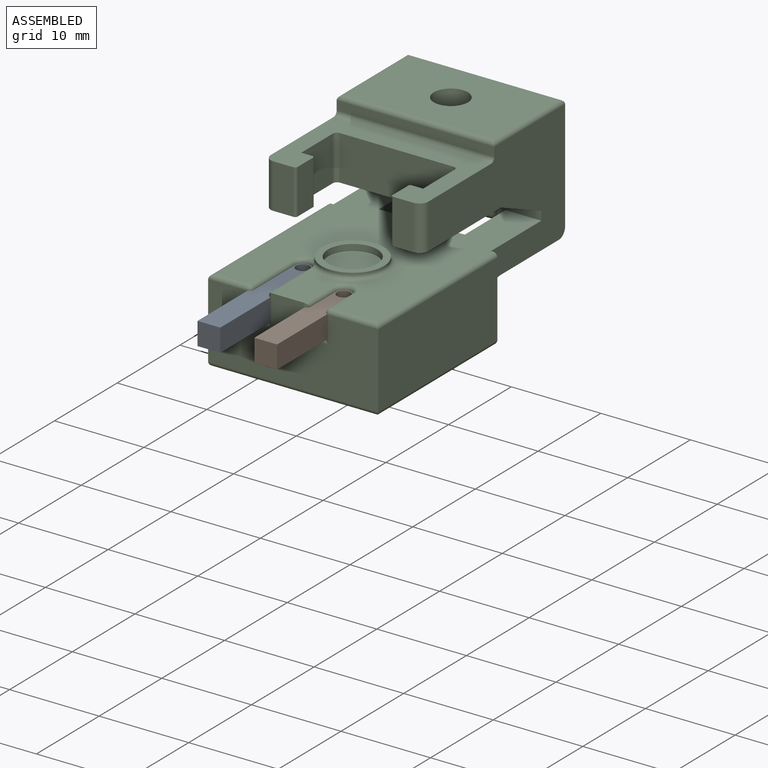
[diagram: assembled view]
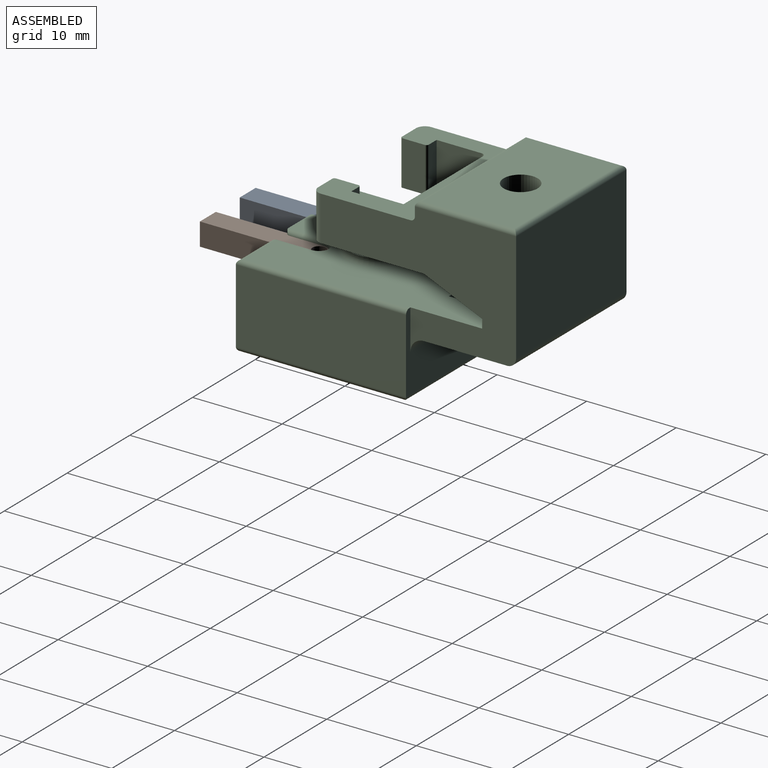
[diagram: assembled view, second angle]
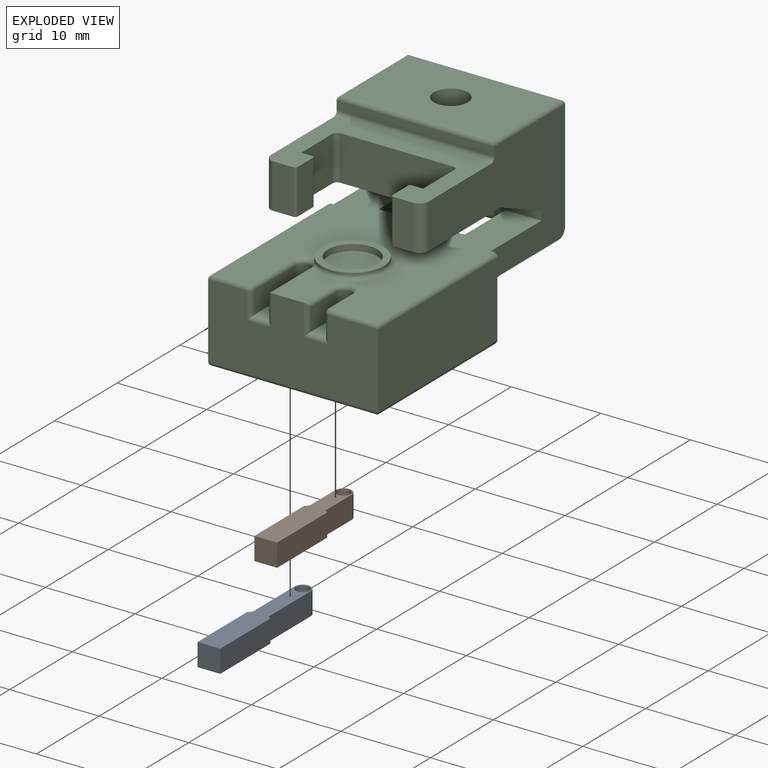
[diagram: exploded view]
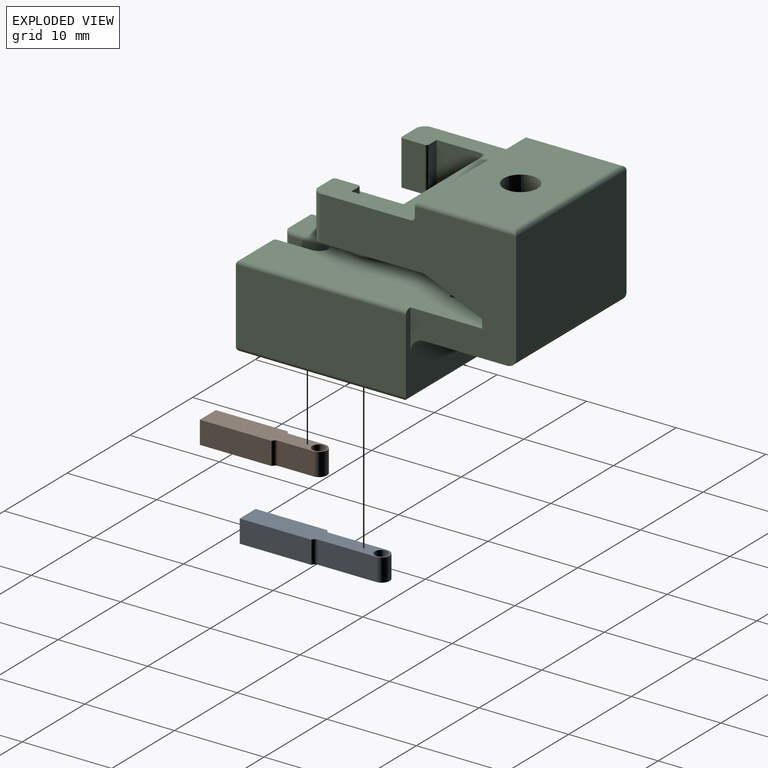
[diagram: exploded view, second angle]
ASSEMBLY  parts=3 mates=6
PART A: 11 faces, bbox 2.5x15.9x2.5 mm
  f0: plane 2.54x2.54mm, normal (0,1,0), area 6.5mm2, adj f1,f5,f7,f8
  f1: plane 8x2.54mm, normal (-1,0,0), area 20.3mm2, adj f0,f7,f8,f9
  f2: plane 6.48x2.54mm, normal (-1,0,0), area 16.5mm2, adj f3,f7,f8,f9
  f3: cylinder r=0.9mm len=2.54mm, axis (0,0,-1), area 7.2mm2, adj f2,f4,f7,f8
  f4: plane 6.48x2.54mm, normal (1,0,0), area 16.5mm2, adj f3,f7,f8,f10
  f5: plane 8x2.54mm, normal (1,0,0), area 20.3mm2, adj f0,f7,f8,f10
  f6: cylinder r=0.75mm len=2.54mm, axis (0,0,-1), area 12mm2, adj f7,f8
  f7: plane 15.86x2.54mm, normal (0,0,1), area 32.4mm2, adj f0,f1,f2,f3,f4,f5,f6,f9
  f8: plane 15.86x2.54mm, normal (0,0,-1), area 32.4mm2, adj f0,f1,f2,f3,f4,f5,f6,f9
  f9: cylinder r=0.5mm len=2.54mm, axis (0,0,-1), area 1.7mm2, adj f1,f2,f7,f8
  f10: cylinder r=0.5mm len=2.54mm, axis (0,0,1), area 1.7mm2, adj f4,f5,f7,f8
PART B: 11 faces, bbox 2.5x13.3x2.5 mm
  f0: plane 2.54x2.54mm, normal (0,1,0), area 6.5mm2, adj f1,f5,f7,f8
  f1: plane 8x2.54mm, normal (-1,0,0), area 20.3mm2, adj f0,f7,f8,f9
  f2: plane 3.94x2.54mm, normal (-1,0,0), area 10mm2, adj f3,f7,f8,f9
  f3: cylinder r=0.9mm len=2.54mm, axis (0,0,-1), area 7.2mm2, adj f2,f4,f7,f8
  f4: plane 3.94x2.54mm, normal (1,0,0), area 10mm2, adj f3,f7,f8,f10
  f5: plane 8x2.54mm, normal (1,0,0), area 20.3mm2, adj f0,f7,f8,f10
  f6: cylinder r=0.75mm len=2.54mm, axis (0,0,-1), area 12mm2, adj f7,f8
  f7: plane 13.32x2.54mm, normal (0,0,1), area 27.9mm2, adj f0,f1,f2,f3,f4,f5,f6,f9
  f8: plane 13.32x2.54mm, normal (0,0,-1), area 27.9mm2, adj f0,f1,f2,f3,f4,f5,f6,f9
  f9: cylinder r=0.5mm len=2.54mm, axis (0,0,-1), area 1.7mm2, adj f1,f2,f7,f8
  f10: cylinder r=0.5mm len=2.54mm, axis (0,0,1), area 1.7mm2, adj f4,f5,f7,f8
PART C: 128 faces, bbox 19.2x31x20.3 mm
  f0: plane 9.3x5.54mm, normal (0,0,-1), area 39mm2, adj f7,f100,f110,f113,f116,f127
  f1: plane 19x8.8mm, normal (0,1,0), area 87.9mm2, adj f7,f18,f45,f46,f47,f68,f85,f90
  f2: plane 17.6x1mm, normal (0,-1,0), area 17.6mm2, adj f7,f18,f34,f125
  f3: plane 5x5mm, normal (1,0,0), area 25mm2, adj f12,f13,f15,f123
  f4: plane 5x5mm, normal (-1,0,0), area 25mm2, adj f6,f12,f13,f124
  f5: plane 6.5x5.31mm, normal (0,-0.4,-0.92), area 27.5mm2, adj f12,f18,f97,f102,f105
  f6: plane 5x1.25mm, normal (0,1,0), area 6.2mm2, adj f4,f8,f12,f13
  f7: plane 21.8x14.8mm, normal (1,0,0), area 185.2mm2, adj f0,f1,f2,f12,f13,f14,f23,f35
  f8: cylinder r=0.25mm len=5mm, axis (0,0,1), area 2mm2, adj f6,f9,f12,f13
  f9: plane 5x2.5mm, normal (-1,0,0), area 12.5mm2, adj f8,f10,f12,f13
  f10: cylinder r=0.25mm len=5mm, axis (0,0,1), area 2mm2, adj f9,f11,f12,f13
  f11: plane 5x2.25mm, normal (0,-1,0), area 11.2mm2, adj f10,f12,f13,f14
  f12: plane 17.6x12.5mm, normal (0,0,-1), area 113mm2, adj f3,f4,f5,f6,f7,f8,f9,f10
  f13: plane 17.6x11mm, normal (0,0,1), area 86.6mm2, adj f3,f4,f6,f7,f8,f9,f10,f11
  f14: cylinder r=1mm len=5mm, axis (0,0,1), area 7.9mm2, adj f7,f11,f12,f13
  f15: plane 5x1.25mm, normal (0,1,0), area 6.2mm2, adj f3,f12,f13,f17
  f16: plane 5x2.5mm, normal (1,0,0), area 12.5mm2, adj f12,f13,f17,f20
  f17: cylinder r=0.25mm len=5mm, axis (0,0,1), area 2mm2, adj f12,f13,f15,f16
  f18: plane 21.8x14.8mm, normal (-1,0,0), area 185.2mm2, adj f1,f2,f5,f12,f13,f21,f23,f32
  f19: plane 5x2.25mm, normal (0,-1,0), area 11.2mm2, adj f12,f13,f20,f21
  f20: cylinder r=0.25mm len=5mm, axis (0,0,1), area 2mm2, adj f12,f13,f16,f19
  f21: cylinder r=1mm len=5mm, axis (0,0,1), area 7.9mm2, adj f12,f13,f18,f19
  f22: plane 16.6x10.3mm, normal (0,0,1), area 159.6mm2, adj f24,f32,f33,f34,f35
  f23: plane 17.6x12.3mm, normal (0,1,0), area 216.5mm2, adj f7,f18,f33,f110
  f24: cylinder r=1.91mm len=3.81mm, axis (0,0,1), area 35.9mm2, adj f22,f31
  f25: plane 4.7x4.15mm, normal (-0.87,0.5,0), area 18.2mm2, adj f26,f30,f31,f109
  f26: plane 4.85x3.14mm, normal (0,1,0), area 15mm2, adj f25,f27,f31,f105,f107,f109
  f27: plane 4.7x4.15mm, normal (0.87,0.5,0), area 18.2mm2, adj f26,f28,f31,f105
  f28: plane 9.83x4.26mm, normal (0.87,-0.5,0), area 35.7mm2, adj f27,f29,f31,f102,f104,f105,f108
  f29: plane 9.8x4.79mm, normal (0,-1,0), area 47mm2, adj f28,f30,f31,f111
  f30: plane 9.83x4.26mm, normal (-0.87,-0.5,0), area 35.7mm2, adj f25,f29,f31,f109,f112,f113,f114
  f31: plane 9.58x8.3mm, normal (0,0,-1), area 48.3mm2, adj f24,f25,f26,f27,f28,f29,f30
  f32: cylinder r=0.5mm len=11.3mm, axis (0,-1,0), area 8.5mm2, adj f18,f22,f33,f34
  f33: cylinder r=0.5mm len=17.6mm, axis (-1,0,0), area 13.4mm2, adj f22,f23,f32,f35
  f34: cylinder r=0.5mm len=17.6mm, axis (1,0,0), area 13.4mm2, adj f2,f22,f32,f35
  f35: cylinder r=0.5mm len=11.3mm, axis (0,1,0), area 8.5mm2, adj f7,f22,f33,f34
  f36: bspline ~0.46x0.41mm, area 0.1mm2, adj f37,f43,f77,f91
  f37: bspline ~0.43x0.39mm, area 0.1mm2, adj f36,f43,f78,f94
  f38: torus R=1.4mm, axis (0,0,-1), area 0mm2, adj f41,f77,f78
  f39: plane 19x8.8mm, normal (0,-1,0), area 142.7mm2, adj f45,f46,f47,f69,f71,f73,f75,f79
  f40: cylinder r=0.9mm len=3.55mm, axis (0,0,-1), area 11.6mm2, adj f66,f67,f74,f117,f120
  f41: cylinder r=0.9mm len=3.67mm, axis (0,0,-1), area 11.7mm2, adj f38,f63,f64,f78,f80,f118,f121
  f42: cylinder r=2.75mm len=5.5mm, axis (0,0,1), area 12.1mm2, adj f44,f48
  f43: cylinder r=3.5mm len=7mm, axis (0,0,1), area 4.8mm2, adj f36,f37,f44,f91,f92,f93,f94
  f44: plane 7x7mm, normal (0,0,1), area 14.7mm2, adj f42,f43
  f45: plane 27x18mm, normal (0,0,1), area 329.1mm2, adj f1,f7,f18,f39,f68,f69,f72,f74
  f46: plane 19x8.3mm, normal (-1,0,0), area 157.7mm2, adj f1,f39,f85,f89
  f47: plane 19x8.3mm, normal (1,0,0), area 157.7mm2, adj f1,f39,f68,f88
  f48: plane 5.5x5.5mm, normal (0,0,1), area 23.8mm2, adj f42
  f49: plane 18x18mm, normal (0,0,-1), area 128mm2, adj f50,f51,f52,f53,f87,f88,f89,f90
  f50: plane 14x1.52mm, normal (0,1,0), area 21.3mm2, adj f49,f51,f53,f54
  f51: plane 14x1.52mm, normal (-1,0,0), area 21.3mm2, adj f49,f50,f52,f54
  f52: plane 14x1.52mm, normal (0,-1,0), area 21.3mm2, adj f49,f51,f53,f54
  f53: plane 14x1.52mm, normal (1,0,0), area 21.3mm2, adj f49,f50,f52,f54
  f54: plane 15.5x15.5mm, normal (0,0,1), area 44.2mm2, adj f50,f51,f52,f53,f58,f59,f60,f61
  f55: plane 5x5mm, normal (0,0,-1), area 19.6mm2, adj f56
  f56: cylinder r=2.5mm len=5mm, axis (0,0,1), area 47.9mm2, adj f55,f119
  f57: plane 15.5x15.5mm, normal (0,0,-1), area 208.2mm2, adj f58,f59,f60,f61,f117,f118,f119
  f58: plane 15.5x3.48mm, normal (1,0,0), area 53.9mm2, adj f54,f57,f59,f61
  f59: plane 15.5x3.48mm, normal (0,-1,0), area 53.9mm2, adj f54,f57,f58,f60
  f60: plane 15.5x3.48mm, normal (-1,0,0), area 53.9mm2, adj f54,f57,f59,f61
  f61: plane 15.5x3.48mm, normal (0,1,0), area 53.9mm2, adj f54,f57,f58,f60
  f62: plane 5.39x1.8mm, normal (0,0,1), area 9.3mm2, adj f63,f64,f81,f121
  f63: plane 6.62x3.16mm, normal (1,0,0), area 16.3mm2, adj f41,f62,f82,f83,f121
  f64: plane 6.62x3.16mm, normal (-1,0,0), area 16.3mm2, adj f41,f62,f77,f79,f121
  f65: plane 2.85x1.8mm, normal (0,0,1), area 4.7mm2, adj f66,f67,f73,f120
  f66: plane 4.08x3.16mm, normal (1,0,0), area 10mm2, adj f40,f65,f75,f76,f120
  f67: plane 4.08x3.16mm, normal (-1,0,0), area 10mm2, adj f40,f65,f71,f72,f120
  f68: cylinder r=0.5mm len=19mm, axis (0,-1,0), area 14.7mm2, adj f1,f45,f47,f69
  f69: cylinder r=0.5mm len=5.56mm, axis (-1,0,0), area 4.2mm2, adj f39,f45,f68,f70
  f70: sphere r=0.5mm, area 0.4mm2, adj f69,f71,f72
  f71: cylinder r=0.5mm len=3mm, axis (0,0,1), area 2.2mm2, adj f39,f67,f70,f73
  f72: cylinder r=0.5mm len=3.92mm, axis (0,1,0), area 3.1mm2, adj f45,f67,f70,f74
  f73: cylinder r=0.5mm len=2.8mm, axis (1,0,0), area 1.8mm2, adj f39,f65,f71,f75
  f74: torus R=1.4mm, axis (0,0,-1), area 2.7mm2, adj f40,f45,f72,f76
  f75: cylinder r=0.5mm len=3.5mm, axis (0,0,-1), area 2.4mm2, adj f39,f66,f73,f76
  f76: cylinder r=0.5mm len=4.42mm, axis (0,-1,0), area 3.3mm2, adj f45,f66,f74,f75
  f77: cylinder r=0.5mm len=6.96mm, axis (0,1,0), area 5.2mm2, adj f36,f38,f45,f64,f79,f91
  f78: bspline ~1.47x1.21mm, area 0.4mm2, adj f37,f38,f41,f80,f94,f95
  f79: cylinder r=0.5mm len=3.5mm, axis (0,0,1), area 2.4mm2, adj f39,f64,f77,f81
  f80: torus R=1.4mm, axis (0,0,-1), area 1.6mm2, adj f41,f45,f78,f82,f93
  f81: cylinder r=0.5mm len=2.8mm, axis (1,0,0), area 1.8mm2, adj f39,f62,f79,f83
  f82: cylinder r=0.5mm len=6.46mm, axis (0,-1,0), area 5.1mm2, adj f45,f63,f80,f84
  f83: cylinder r=0.5mm len=3mm, axis (0,0,-1), area 2.2mm2, adj f39,f63,f81,f84
  f84: sphere r=0.5mm, area 0.4mm2, adj f82,f83,f86
  f85: cylinder r=0.5mm len=19mm, axis (0,1,0), area 14.7mm2, adj f1,f45,f46,f86
  f86: cylinder r=0.5mm len=4.29mm, axis (-1,0,0), area 3.2mm2, adj f39,f45,f84,f85
  f87: cylinder r=0.5mm len=19mm, axis (1,0,0), area 14.5mm2, adj f39,f49,f88,f89
  f88: cylinder r=0.5mm len=19mm, axis (0,1,0), area 14.5mm2, adj f47,f49,f87,f90
  f89: cylinder r=0.5mm len=19mm, axis (0,-1,0), area 14.5mm2, adj f46,f49,f87,f90
  f90: cylinder r=0.5mm len=19mm, axis (-1,0,0), area 14.5mm2, adj f1,f49,f88,f89
  f91: bspline ~1.14x0.82mm, area 0.4mm2, adj f36,f43,f77,f92
  f92: torus R=4mm, axis (0,0,-1), area 16.3mm2, adj f43,f45,f91,f93
  f93: bspline ~0.83x0.82mm, area 0.4mm2, adj f43,f80,f92,f95
  f94: bspline ~0.75x0.6mm, area 0.2mm2, adj f37,f43,f78,f95
  f95: bspline ~0.38x0.3mm, area 0mm2, adj f78,f93,f94
  f96: plane 9.3x5.54mm, normal (0,0,-1), area 39mm2, adj f18,f101,f103,f108,f110,f127
  f97: plane 4.51x3.07mm, normal (0,-1,0), area 5.5mm2, adj f5,f18,f45,f101,f102,f103,f104
  f98: plane 6.5x5.31mm, normal (0,-0.4,-0.92), area 27.5mm2, adj f7,f12,f99,f109,f112
  f99: plane 4.51x3.07mm, normal (0,-1,0), area 5.5mm2, adj f7,f45,f98,f100,f112,f114,f116
  f100: plane 7.5x3mm, normal (-1,0,0), area 19.7mm2, adj f0,f45,f99,f116,f126
  f101: plane 7.5x3mm, normal (1,0,0), area 19.7mm2, adj f45,f96,f97,f103,f126
  f102: cylinder r=1mm len=3.04mm, axis (-0.47,-0.81,0.35), area 3.9mm2, adj f5,f28,f97,f104,f105
  f103: cylinder r=1mm len=1mm, axis (1,0,0), area 0.8mm2, adj f96,f97,f101,f106
  f104: cylinder r=1mm len=3.66mm, axis (0,0,1), area 3.5mm2, adj f28,f97,f102,f106
  f105: cylinder r=1mm len=5.55mm, axis (0.47,-0.81,0.35), area 9.1mm2, adj f5,f26,f27,f28,f102,f107
  f106: sphere r=1mm, area 1mm2, adj f103,f104,f108
  f107: cylinder r=1mm len=6.98mm, axis (1,0,0), area 6.2mm2, adj f12,f26,f105,f109
  f108: cylinder r=1mm len=2.68mm, axis (-0.5,-0.87,0), area 3.6mm2, adj f28,f96,f106,f110,f111
  f109: cylinder r=1mm len=5.55mm, axis (0.47,0.81,-0.35), area 9.1mm2, adj f25,f26,f30,f98,f107,f112
  f110: cylinder r=1mm len=17.6mm, axis (1,0,0), area 26.1mm2, adj f0,f7,f18,f23,f96,f108,f111,f113
  f111: cylinder r=1mm len=5.66mm, axis (-1,0,0), area 6.9mm2, adj f29,f108,f110,f113
  f112: cylinder r=1mm len=3.04mm, axis (-0.47,0.81,-0.35), area 3.9mm2, adj f30,f98,f99,f109,f114
  f113: cylinder r=1mm len=2.68mm, axis (-0.5,0.87,0), area 3.6mm2, adj f0,f30,f110,f111,f115
  f114: cylinder r=1mm len=3.66mm, axis (0,0,-1), area 3.5mm2, adj f30,f99,f112,f115
  f115: sphere r=1mm, area 1.2mm2, adj f113,f114,f116
  f116: cylinder r=1mm len=1mm, axis (1,0,0), area 0.8mm2, adj f0,f99,f100,f115
  f117: torus R=1.15mm, axis (0,0,-1), area 2.4mm2, adj f40,f57
  f118: torus R=1.15mm, axis (0,0,-1), area 2.4mm2, adj f41,f57
  f119: torus R=2.75mm, axis (0,0,-1), area 6.4mm2, adj f56,f57
  f120: torus R=1.4mm, axis (0,0,-1), area 1.9mm2, adj f40,f65,f66,f67
  f121: torus R=1.4mm, axis (0,0,-1), area 1.9mm2, adj f41,f62,f63,f64
  f122: plane 12.6x5mm, normal (0,-1,0), area 63mm2, adj f12,f13,f123,f124
  f123: cylinder r=0.5mm len=5mm, axis (0,0,-1), area 3.9mm2, adj f3,f12,f13,f122
  f124: cylinder r=0.5mm len=5mm, axis (0,0,1), area 3.9mm2, adj f4,f12,f13,f122
  f125: cylinder r=0.5mm len=17.6mm, axis (-1,0,0), area 13.8mm2, adj f2,f7,f13,f18
  f126: plane 9.6x3mm, normal (0,1,0), area 28.8mm2, adj f45,f100,f101,f127
  f127: cylinder r=1.5mm len=17.6mm, axis (1,0,0), area 41.5mm2, adj f0,f1,f7,f18,f96,f126
PLACE A rot(axis=(1,0,0),180deg) t=(-6.55,7.54,-8.08)mm
PLACE B rot(axis=(1,0,0),180deg) t=(-0.2,5,-8.08)mm
PLACE C t=(-2.74,10.08,3.18)mm
MATE planar A.f7 <-> C.f62  axis (0,0,-1) through (-7.82,-3.42,-10.62)mm
MATE cylindrical A.f6 <-> C.f38  axis (0,0,-1) through (-6.55,7.54,-10.62)mm
MATE planar C.f66 <-> B.f2  axis (1,0,0) through (-1.1,3.07,-9.4)mm
MATE planar B.f7 <-> C.f65  axis (0,0,-1) through (0.7,3.03,-10.62)mm
MATE cylindrical B.f6 <-> C.f40  axis (0,0,1) through (-0.2,5,-10.62)mm
MATE planar A.f2 <-> C.f63  axis (-1,0,0) through (-7.45,4.3,-9.35)mm
